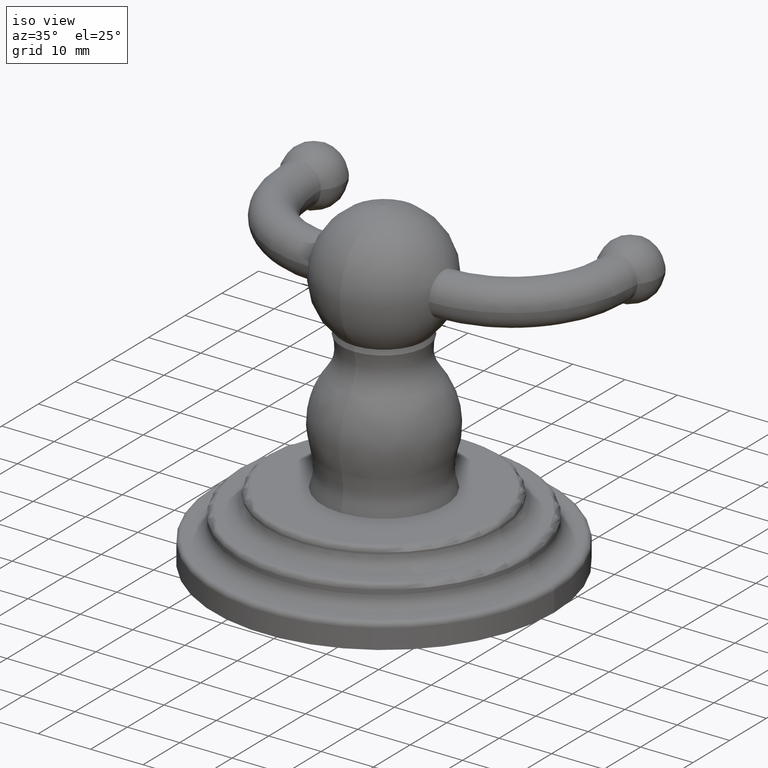
[diagram: clean part render]
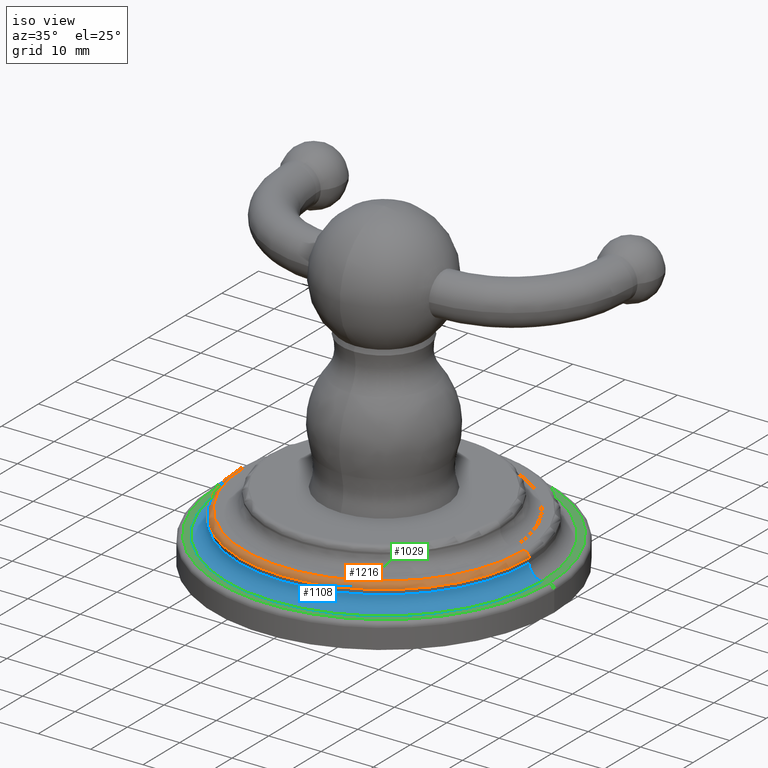
[diagram: same view with three faces highlighted in distinct colors, each labeled with its STEP entity id]
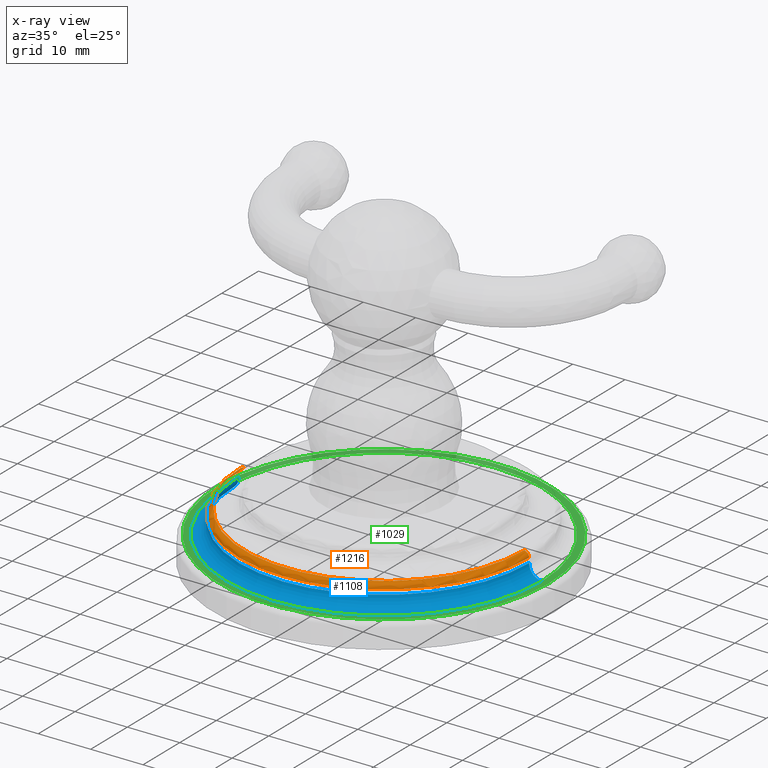
[diagram: x-ray of the same camera — body ghosted, the three highlighted faces saturated]
A machine part, iso view with three faces highlighted in distinct colors.
The next image is the same camera in x-ray (body ghosted, the three faces saturated) — at least one of them is partly hidden behind the body in this view.
Their STEP definitions:

[orange] entity #1216 — the highlighted toroidal blend (fillet) surface has major radius 26.7208 mm and minor (blend) radius 0.9906 mm.
#284=CARTESIAN_POINT('',(1.052E0,0.E0,3.23E-1));
#285=DIRECTION('',(0.E0,1.E0,0.E0));
#286=DIRECTION('',(0.E0,0.E0,1.E0));
#287=AXIS2_PLACEMENT_3D('',#284,#285,#286);
#300=CARTESIAN_POINT('',(1.229081020560E-14,0.E0,3.62E-1));
#301=DIRECTION('',(0.E0,0.E0,1.E0));
#302=DIRECTION('',(-1.E0,0.E0,0.E0));
#303=AXIS2_PLACEMENT_3D('',#300,#301,#302);
#308=CARTESIAN_POINT('',(-1.052E0,0.E0,3.23E-1));
#309=DIRECTION('',(0.E0,-1.E0,0.E0));
#310=DIRECTION('',(0.E0,0.E0,1.E0));
#311=AXIS2_PLACEMENT_3D('',#308,#309,#310);
#316=CARTESIAN_POINT('',(1.228603408309E-14,0.E0,3.23E-1));
#317=DIRECTION('',(0.E0,0.E0,1.E0));
#318=DIRECTION('',(-1.E0,0.E0,0.E0));
#319=AXIS2_PLACEMENT_3D('',#316,#317,#318);
#906=CARTESIAN_POINT('',(1.052E0,0.E0,3.62E-1));
#907=CARTESIAN_POINT('',(-1.052E0,0.E0,3.62E-1));
#908=VERTEX_POINT('',#906);
#909=VERTEX_POINT('',#907);
#910=CARTESIAN_POINT('',(1.091E0,0.E0,3.23E-1));
#911=CARTESIAN_POINT('',(-1.091E0,0.E0,3.23E-1));
#912=VERTEX_POINT('',#910);
#913=VERTEX_POINT('',#911);
#1204=CARTESIAN_POINT('',(1.228603408309E-14,0.E0,3.23E-1));
#1205=DIRECTION('',(0.E0,0.E0,1.E0));
#1206=DIRECTION('',(-9.999867172070E-1,5.154164299679E-3,0.E0));
#1207=AXIS2_PLACEMENT_3D('',#1204,#1205,#1206);
#1208=TOROIDAL_SURFACE('',#1207,1.052E0,3.9E-2);
#1209=ORIENTED_EDGE('',*,*,#1186,.T.);
#1210=ORIENTED_EDGE('',*,*,#1168,.T.);
#1212=ORIENTED_EDGE('',*,*,#1211,.F.);
#1213=ORIENTED_EDGE('',*,*,#1165,.F.);
#1214=EDGE_LOOP('',(#1209,#1210,#1212,#1213));
#1215=FACE_OUTER_BOUND('',#1214,.F.);
#288=CIRCLE('',#287,3.9E-2);
#304=CIRCLE('',#303,1.052E0);
#312=CIRCLE('',#311,3.9E-2);
#320=CIRCLE('',#319,1.091E0);
#1165=EDGE_CURVE('',#909,#913,#312,.T.);
#1168=EDGE_CURVE('',#908,#912,#288,.T.);
#1186=EDGE_CURVE('',#909,#908,#304,.T.);
#1211=EDGE_CURVE('',#913,#912,#320,.T.);
#1216=ADVANCED_FACE('',(#1215),#1208,.T.);

[blue] entity #1108 — the highlighted toroidal blend (fillet) surface has major radius 30.2006 mm and minor (blend) radius 2.4892 mm.
#236=CARTESIAN_POINT('',(1.189E0,0.E0,2.87E-1));
#237=DIRECTION('',(0.E0,1.E0,0.E0));
#238=DIRECTION('',(0.E0,0.E0,-1.E0));
#239=AXIS2_PLACEMENT_3D('',#236,#237,#238);
#244=CARTESIAN_POINT('',(1.226962381598E-14,0.E0,1.89E-1));
#245=DIRECTION('',(0.E0,0.E0,-1.E0));
#246=DIRECTION('',(1.E0,0.E0,0.E0));
#247=AXIS2_PLACEMENT_3D('',#244,#245,#246);
#252=CARTESIAN_POINT('',(-1.189E0,0.E0,2.87E-1));
#253=DIRECTION('',(0.E0,-1.E0,0.E0));
#254=DIRECTION('',(0.E0,0.E0,-1.E0));
#255=AXIS2_PLACEMENT_3D('',#252,#253,#254);
#331=CARTESIAN_POINT('',(1.228162535461E-14,0.E0,2.87E-1));
#332=DIRECTION('',(0.E0,0.E0,-1.E0));
#333=DIRECTION('',(1.E0,0.E0,0.E0));
#334=AXIS2_PLACEMENT_3D('',#331,#332,#333);
#878=CARTESIAN_POINT('',(1.189E0,0.E0,1.89E-1));
#879=CARTESIAN_POINT('',(1.091E0,0.E0,2.87E-1));
#880=VERTEX_POINT('',#878);
#881=VERTEX_POINT('',#879);
#886=CARTESIAN_POINT('',(-1.189E0,0.E0,1.89E-1));
#887=CARTESIAN_POINT('',(-1.091E0,0.E0,2.87E-1));
#888=VERTEX_POINT('',#886);
#889=VERTEX_POINT('',#887);
#1094=CARTESIAN_POINT('',(1.228162535461E-14,0.E0,2.87E-1));
#1095=DIRECTION('',(0.E0,0.E0,1.E0));
#1096=DIRECTION('',(1.E0,0.E0,0.E0));
#1097=AXIS2_PLACEMENT_3D('',#1094,#1095,#1096);
#1098=TOROIDAL_SURFACE('',#1097,1.189E0,9.8E-2);
#1100=ORIENTED_EDGE('',*,*,#1099,.F.);
#1101=ORIENTED_EDGE('',*,*,#1023,.T.);
#1103=ORIENTED_EDGE('',*,*,#1102,.T.);
#1105=ORIENTED_EDGE('',*,*,#1104,.F.);
#1106=EDGE_LOOP('',(#1100,#1101,#1103,#1105));
#1107=FACE_OUTER_BOUND('',#1106,.F.);
#240=CIRCLE('',#239,9.8E-2);
#248=CIRCLE('',#247,1.189E0);
#256=CIRCLE('',#255,9.8E-2);
#335=CIRCLE('',#334,1.091E0);
#1023=EDGE_CURVE('',#880,#888,#248,.T.);
#1099=EDGE_CURVE('',#880,#881,#240,.T.);
#1102=EDGE_CURVE('',#888,#889,#256,.T.);
#1104=EDGE_CURVE('',#881,#889,#335,.T.);
#1108=ADVANCED_FACE('',(#1107),#1098,.F.);

[green] entity #1029 — the highlighted planar face has unit normal (0, 0, 1).
#182=CARTESIAN_POINT('',(1.226962381598E-14,0.E0,1.89E-1));
#183=DIRECTION('',(0.E0,0.E0,1.E0));
#184=DIRECTION('',(1.E0,0.E0,0.E0));
#185=AXIS2_PLACEMENT_3D('',#182,#183,#184);
#190=CARTESIAN_POINT('',(1.226962381598E-14,0.E0,1.89E-1));
#191=DIRECTION('',(0.E0,0.E0,1.E0));
#192=DIRECTION('',(-1.E0,0.E0,0.E0));
#193=AXIS2_PLACEMENT_3D('',#190,#191,#192);
#244=CARTESIAN_POINT('',(1.226962381598E-14,0.E0,1.89E-1));
#245=DIRECTION('',(0.E0,0.E0,-1.E0));
#246=DIRECTION('',(1.E0,0.E0,0.E0));
#247=AXIS2_PLACEMENT_3D('',#244,#245,#246);
#260=CARTESIAN_POINT('',(1.226962381598E-14,0.E0,1.89E-1));
#261=DIRECTION('',(0.E0,0.E0,1.E0));
#262=DIRECTION('',(1.E0,0.E0,0.E0));
#263=AXIS2_PLACEMENT_3D('',#260,#261,#262);
#878=CARTESIAN_POINT('',(1.189E0,0.E0,1.89E-1));
#880=VERTEX_POINT('',#878);
#886=CARTESIAN_POINT('',(-1.189E0,0.E0,1.89E-1));
#888=VERTEX_POINT('',#886);
#898=CARTESIAN_POINT('',(1.241E0,0.E0,1.89E-1));
#899=CARTESIAN_POINT('',(-1.241E0,0.E0,1.89E-1));
#900=VERTEX_POINT('',#898);
#901=VERTEX_POINT('',#899);
#1013=CARTESIAN_POINT('',(1.226962381598E-14,0.E0,1.89E-1));
#1014=DIRECTION('',(0.E0,0.E0,1.E0));
#1015=DIRECTION('',(1.E0,0.E0,0.E0));
#1016=AXIS2_PLACEMENT_3D('',#1013,#1014,#1015);
#1017=PLANE('',#1016);
#1018=ORIENTED_EDGE('',*,*,#996,.F.);
#1020=ORIENTED_EDGE('',*,*,#1019,.F.);
#1021=EDGE_LOOP('',(#1018,#1020));
#1022=FACE_OUTER_BOUND('',#1021,.F.);
#1024=ORIENTED_EDGE('',*,*,#1023,.F.);
#1026=ORIENTED_EDGE('',*,*,#1025,.T.);
#1027=EDGE_LOOP('',(#1024,#1026));
#1028=FACE_BOUND('',#1027,.F.);
#186=CIRCLE('',#185,1.241E0);
#194=CIRCLE('',#193,1.241E0);
#248=CIRCLE('',#247,1.189E0);
#264=CIRCLE('',#263,1.189E0);
#996=EDGE_CURVE('',#900,#901,#186,.T.);
#1019=EDGE_CURVE('',#901,#900,#194,.T.);
#1023=EDGE_CURVE('',#880,#888,#248,.T.);
#1025=EDGE_CURVE('',#880,#888,#264,.T.);
#1029=ADVANCED_FACE('',(#1022,#1028),#1017,.T.);